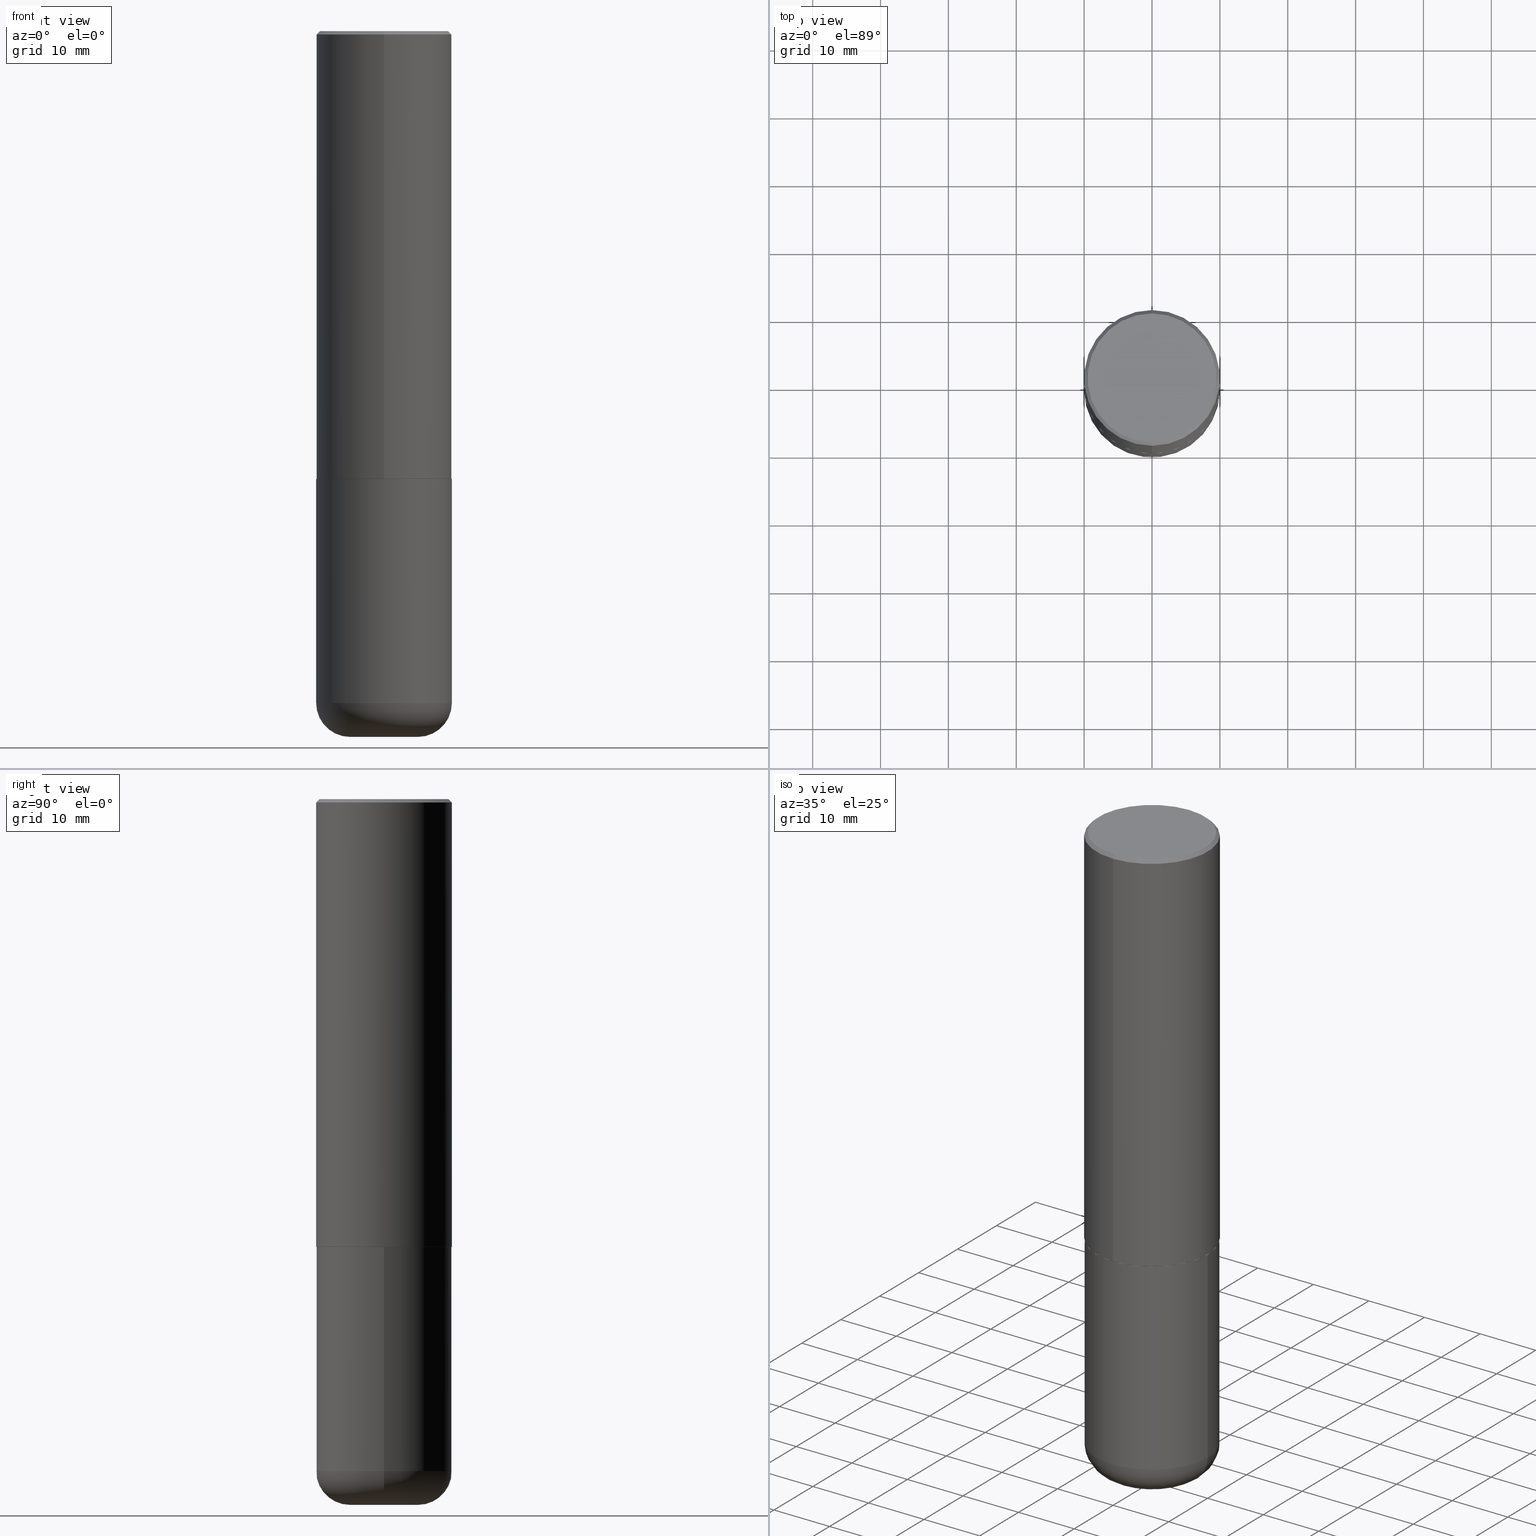
[diagram: canonical four-view strip — front | top / right | iso, engineering-drawing reading convention]
A machine part, canonical four-view strip (front | top / right | iso — engineering-drawing reading convention). The complete STEP part file that produces these views, byte-faithful:
ISO-10303-21;
HEADER;
FILE_DESCRIPTION (( 'STEP AP203' ),
    '1' );
FILE_NAME ('46470.STEP',
    '2024-03-04T22:43:15',
    ( '' ),
    ( '' ),
    'SwSTEP 2.0',
    'SolidWorks 2023',
    '' );
FILE_SCHEMA (( 'CONFIG_CONTROL_DESIGN' ));
ENDSEC;

DATA;
#1 = AXIS2_PLACEMENT_3D ( 'NONE', #292, #386, #190 ) ;
#2 = CLOSED_SHELL ( 'NONE', ( #331, #314, #208, #178, #112, #251 ) ) ;
#3 = DIRECTION ( 'NONE',  ( 1.000000000000000000, -6.982962677686265922E-15, 4.876176775795935793E-29 ) ) ;
#4 = ORIENTED_EDGE ( 'NONE', *, *, #103, .T. ) ;
#5 = ORIENTED_EDGE ( 'NONE', *, *, #417, .T. ) ;
#6 = PLANE ( 'NONE',  #26 ) ;
#7 = PERSON_AND_ORGANIZATION_ROLE ( 'design_supplier' ) ;
#8 = EDGE_CURVE ( 'NONE', #402, #298, #96, .T. ) ;
#9 = CIRCLE ( 'NONE', #352, 0.1968999999999996586 ) ;
#10 = ORIENTED_EDGE ( 'NONE', *, *, #167, .T. ) ;
#11 = APPROVAL ( #88, 'UNSPECIFIED' ) ;
#12 = DIRECTION ( 'NONE',  ( -2.446421346102411128E-29, 3.490117247466403305E-15, 1.000000000000000000 ) ) ;
#13 = PERSON_AND_ORGANIZATION ( #37, #97 ) ;
#14 = ORIENTED_EDGE ( 'NONE', *, *, #65, .T. ) ;
#15 =( NAMED_UNIT ( * ) PLANE_ANGLE_UNIT ( ) SI_UNIT ( $, .RADIAN. ) );
#16 = VECTOR ( 'NONE', #180, 39.37007874015748143 ) ;
#17 = CC_DESIGN_APPROVAL ( #11, ( #393 ) ) ;
#18 = DIRECTION ( 'NONE',  ( -2.446421346102411128E-29, 3.490117247466403305E-15, 1.000000000000000000 ) ) ;
#19 = DIRECTION ( 'NONE',  ( 6.982962677686265922E-15, 1.000000000000000000, -3.491137977679280212E-15 ) ) ;
#20 = VERTEX_POINT ( 'NONE', #248 ) ;
#21 = CARTESIAN_POINT ( 'NONE',  ( 9.531459218987190195E-29, -1.360839766627504578E-14, -3.897600000000000620 ) ) ;
#22 = FACE_OUTER_BOUND ( 'NONE', #377, .T. ) ;
#23 = MECHANICAL_CONTEXT ( 'NONE', #229, 'mechanical' ) ;
#24 = EDGE_CURVE ( 'NONE', #306, #131, #197, .T. ) ;
#25 = CARTESIAN_POINT ( 'NONE',  ( 2.749192406205082822E-15, 0.3936999999999998834, -0.02000000000000146105 ) ) ;
#26 = AXIS2_PLACEMENT_3D ( 'NONE', #114, #317, #150 ) ;
#27 = CIRCLE ( 'NONE', #43, 0.1968000000000000582 ) ;
#28 = PERSON_AND_ORGANIZATION_ROLE ( 'design_owner' ) ;
#29 = EDGE_LOOP ( 'NONE', ( #265, #234, #221, #309 ) ) ;
#30 = DIRECTION ( 'NONE',  ( -4.937700262165728178E-15, -0.7071067811867141062, 0.7071067811863809283 ) ) ;
#31 = EDGE_CURVE ( 'NONE', #306, #318, #336, .T. ) ;
#32 = ORIENTED_EDGE ( 'NONE', *, *, #263, .F. ) ;
#33 = DIRECTION ( 'NONE',  ( 2.438088387897960049E-29, -3.491481338843145188E-15, -1.000000000000000000 ) ) ;
#34 = EDGE_CURVE ( 'NONE', #20, #76, #41, .T. ) ;
#35 = AXIS2_PLACEMENT_3D ( 'NONE', #201, #132, #395 ) ;
#36 = AXIS2_PLACEMENT_3D ( 'NONE', #157, #379, #321 ) ;
#37 = PERSON ( 'UNSPECIFIED', 'UNSPECIFIED', 'UNSPECIFIED', ('UNSPECIFIED'), ('UNSPECIFIED'), ('UNSPECIFIED') ) ;
#38 = CARTESIAN_POINT ( 'NONE',  ( 0.000000000000000000, 0.000000000000000000, 0.000000000000000000 ) ) ;
#39 = EDGE_CURVE ( 'NONE', #351, #402, #281, .T. ) ;
#40 = PLANE ( 'NONE',  #414 ) ;
#41 = CIRCLE ( 'NONE', #343, 0.3936999999999999389 ) ;
#42 = FACE_OUTER_BOUND ( 'NONE', #200, .T. ) ;
#43 = AXIS2_PLACEMENT_3D ( 'NONE', #205, #210, #342 ) ;
#44 = CC_DESIGN_PERSON_AND_ORGANIZATION_ASSIGNMENT ( #279, #243, ( #372 ) ) ;
#45 = DIRECTION ( 'NONE',  ( -2.446421346102410847E-29, 3.490117247466403305E-15, 1.000000000000000000 ) ) ;
#46 = VERTEX_POINT ( 'NONE', #193 ) ;
#47 = CARTESIAN_POINT ( 'NONE',  ( 9.531459218987190195E-29, -1.360839766627504578E-14, -3.897600000000000620 ) ) ;
#48 = COORDINATED_UNIVERSAL_TIME_OFFSET ( 5, 0, .BEHIND. ) ;
#49 = FACE_OUTER_BOUND ( 'NONE', #149, .T. ) ;
#50 = ORIENTED_EDGE ( 'NONE', *, *, #373, .T. ) ;
#51 = CIRCLE ( 'NONE', #247, 0.3736999999999997546 ) ;
#52 = FACE_OUTER_BOUND ( 'NONE', #172, .T. ) ;
#53 = DIRECTION ( 'NONE',  ( -2.446421346102411128E-29, 3.490117247466403305E-15, 1.000000000000000000 ) ) ;
#54 = ORIENTED_EDGE ( 'NONE', *, *, #24, .F. ) ;
#55 = DIRECTION ( 'NONE',  ( -6.982962677686265133E-15, -1.000000000000000000, 3.490117247466403699E-15 ) ) ;
#56 =( CONVERSION_BASED_UNIT ( 'INCH', #192 ) LENGTH_UNIT ( ) NAMED_UNIT ( #301 ) );
#57 = EDGE_CURVE ( 'NONE', #131, #351, #9, .T. ) ;
#58 = APPROVAL_ROLE ( '' ) ;
#59 = AXIS2_PLACEMENT_3D ( 'NONE', #38, #300, #3 ) ;
#60 =( NAMED_UNIT ( * ) SI_UNIT ( $, .STERADIAN. ) SOLID_ANGLE_UNIT ( ) );
#61 = CARTESIAN_POINT ( 'NONE',  ( -2.749192406205083217E-15, -0.3937000000000001054, 1.374059160327523452E-15 ) ) ;
#62 = EDGE_CURVE ( 'NONE', #298, #402, #164, .T. ) ;
#63 = APPLICATION_PROTOCOL_DEFINITION ( 'international standard', 'config_control_design', 1994, #229 ) ;
#64 = DIRECTION ( 'NONE',  ( 1.000000000000000000, -6.982962677686264344E-15, 4.883557194083112340E-29 ) ) ;
#65 = EDGE_CURVE ( 'NONE', #46, #20, #299, .T. ) ;
#66 = ORIENTED_EDGE ( 'NONE', *, *, #159, .T. ) ;
#67 = CONICAL_SURFACE ( 'NONE', #202, 0.3926999999999999935, 0.7853981633976873100 ) ;
#68 = DIRECTION ( 'NONE',  ( -2.446421346102411128E-29, 3.490117247466403305E-15, 1.000000000000000000 ) ) ;
#69 = CARTESIAN_POINT ( 'NONE',  ( -2.742209443527332910E-15, -0.3927000000000090973, -2.598399999999998489 ) ) ;
#70 = EDGE_CURVE ( 'NONE', #228, #387, #51, .T. ) ;
#71 = CONICAL_SURFACE ( 'NONE', #239, 0.3936999999999999389, 0.7853981633974473908 ) ;
#72 = CYLINDRICAL_SURFACE ( 'NONE', #384, 0.3937000000000001054 ) ;
#73 = ORIENTED_EDGE ( 'NONE', *, *, #277, .F. ) ;
#74 = ORIENTED_EDGE ( 'NONE', *, *, #256, .T. ) ;
#75 = CARTESIAN_POINT ( 'NONE',  ( 0.000000000000000000, 0.000000000000000000, 0.000000000000000000 ) ) ;
#76 = VERTEX_POINT ( 'NONE', #367 ) ;
#77 = AXIS2_PLACEMENT_3D ( 'NONE', #357, #152, #389 ) ;
#78 = LOCAL_TIME ( 17, 43, 15.00000000000000000, #211 ) ;
#79 = CYLINDRICAL_SURFACE ( 'NONE', #176, 0.3937000000000001054 ) ;
#80 = ADVANCED_FACE ( 'NONE', ( #222 ), #71, .T. ) ;
#81 = DIRECTION ( 'NONE',  ( -2.446421346102411128E-29, 3.490117247466403305E-15, 1.000000000000000000 ) ) ;
#82 = ORIENTED_EDGE ( 'NONE', *, *, #70, .F. ) ;
#83 = DIRECTION ( 'NONE',  ( 1.000000000000000000, -6.982962677686265922E-15, 4.876176775795935793E-29 ) ) ;
#84 = VECTOR ( 'NONE', #209, 39.37007874015748143 ) ;
#85 = CARTESIAN_POINT ( 'NONE',  ( 0.000000000000000000, 0.000000000000000000, 0.000000000000000000 ) ) ;
#86 = APPROVAL_STATUS ( 'not_yet_approved' ) ;
#87 = COORDINATED_UNIVERSAL_TIME_OFFSET ( 5, 0, .BEHIND. ) ;
#88 = APPROVAL_STATUS ( 'not_yet_approved' ) ;
#89 = APPROVAL_ROLE ( '' ) ;
#90 = ORIENTED_EDGE ( 'NONE', *, *, #394, .T. ) ;
#91 = ORIENTED_EDGE ( 'NONE', *, *, #62, .F. ) ;
#92 = PERSON_AND_ORGANIZATION ( #37, #97 ) ;
#93 = LINE ( 'NONE', #69, #106 ) ;
#94 = APPROVAL ( #284, 'UNSPECIFIED' ) ;
#95 = ORIENTED_EDGE ( 'NONE', *, *, #124, .F. ) ;
#96 = CIRCLE ( 'NONE', #104, 0.3937000000000000499 ) ;
#97 = ORGANIZATION ( 'UNSPECIFIED', 'UNSPECIFIED', '' ) ;
#98 = CARTESIAN_POINT ( 'NONE',  ( -3.642432124526785739E-45, 5.196371917204674940E-31, 1.488881762060257599E-16 ) ) ;
#99 = DIRECTION ( 'NONE',  ( -2.446421346102411128E-29, 3.490117247466403305E-15, 1.000000000000000000 ) ) ;
#100 = ORIENTED_EDGE ( 'NONE', *, *, #394, .F. ) ;
#101 = CARTESIAN_POINT ( 'NONE',  ( -3.642432124526785739E-45, 5.196371917204674940E-31, 1.488881762060257599E-16 ) ) ;
#102 = FACE_OUTER_BOUND ( 'NONE', #385, .T. ) ;
#103 = EDGE_CURVE ( 'NONE', #183, #273, #219, .T. ) ;
#104 = AXIS2_PLACEMENT_3D ( 'NONE', #383, #218, #254 ) ;
#105 = LOCAL_TIME ( 17, 43, 15.00000000000000000, #87 ) ;
#106 = VECTOR ( 'NONE', #30, 39.37007874015748143 ) ;
#107 = DIRECTION ( 'NONE',  ( -6.982962677686265922E-15, -1.000000000000000000, 3.490117247466403305E-15 ) ) ;
#108 = ORIENTED_EDGE ( 'NONE', *, *, #256, .F. ) ;
#109 = ADVANCED_BREP_SHAPE_REPRESENTATION ( '46470', ( #168, #162, #36 ), #198 ) ;
#110 = EDGE_LOOP ( 'NONE', ( #143, #170 ) ) ;
#111 = AXIS2_PLACEMENT_3D ( 'NONE', #359, #160, #195 ) ;
#112 = ADVANCED_FACE ( 'NONE', ( #42 ), #115, .T. ) ;
#113 = ORIENTED_EDGE ( 'NONE', *, *, #417, .F. ) ;
#114 = CARTESIAN_POINT ( 'NONE',  ( 6.354306145991459756E-29, -9.072265110850031044E-15, -2.598400000000000265 ) ) ;
#115 = TOROIDAL_SURFACE ( 'NONE', #283, 0.1968000000000000305, 0.1968999999999996031 ) ;
#116 = VECTOR ( 'NONE', #154, 39.37007874015748143 ) ;
#117 = SECURITY_CLASSIFICATION_LEVEL ( 'unclassified' ) ;
#118 = EDGE_LOOP ( 'NONE', ( #95, #108, #297, #313 ) ) ;
#119 = DIRECTION ( 'NONE',  ( -2.445468806185136597E-29, 3.491481338843145583E-15, 1.000000000000000000 ) ) ;
#120 = CC_DESIGN_PERSON_AND_ORGANIZATION_ASSIGNMENT ( #13, #404, ( #393 ) ) ;
#121 = ORIENTED_EDGE ( 'NONE', *, *, #167, .F. ) ;
#122 = CARTESIAN_POINT ( 'NONE',  ( -0.1968000000000000305, -1.221004956229916800E-14, -3.897600000000000620 ) ) ;
#123 = CARTESIAN_POINT ( 'NONE',  ( 0.3936999999999998279, -1.635759007248013057E-14, -3.897600000000000620 ) ) ;
#124 = EDGE_CURVE ( 'NONE', #228, #76, #264, .T. ) ;
#125 = AXIS2_PLACEMENT_3D ( 'NONE', #311, #214, #271 ) ;
#126 = AXIS2_PLACEMENT_3D ( 'NONE', #356, #289, #64 ) ;
#127 = DATE_AND_TIME ( #418, #156 ) ;
#128 = ORIENTED_EDGE ( 'NONE', *, *, #226, .T. ) ;
#129 = APPROVAL_DATE_TIME ( #127, #94 ) ;
#130 = CARTESIAN_POINT ( 'NONE',  ( 1.795080631781638397E-28, -2.928439843866505824E-15, -4.094500000000000028 ) ) ;
#131 = VERTEX_POINT ( 'NONE', #242 ) ;
#132 = DIRECTION ( 'NONE',  ( -2.446421346102411128E-29, 3.490117247466403305E-15, 1.000000000000000000 ) ) ;
#133 = CC_DESIGN_DATE_AND_TIME_ASSIGNMENT ( #371, #374, ( #294 ) ) ;
#134 = AXIS2_PLACEMENT_3D ( 'NONE', #21, #259, #191 ) ;
#135 = DIRECTION ( 'NONE',  ( -2.446421346102411408E-29, 3.490117247466403305E-15, 1.000000000000000000 ) ) ;
#136 = ADVANCED_FACE ( 'NONE', ( #49 ), #79, .T. ) ;
#137 = EDGE_LOOP ( 'NONE', ( #121, #50, #400, #236 ) ) ;
#138 = CARTESIAN_POINT ( 'NONE',  ( 6.356781225712504765E-29, -9.068720655816703209E-15, -2.598400000000000265 ) ) ;
#139 = LINE ( 'NONE', #305, #179 ) ;
#140 = CALENDAR_DATE ( 2024, 4, 3 ) ;
#141 = CARTESIAN_POINT ( 'NONE',  ( 0.000000000000000000, 0.000000000000000000, 0.000000000000000000 ) ) ;
#142 = DIRECTION ( 'NONE',  ( -6.982962677686265133E-15, -1.000000000000000000, 4.173946514383900962E-15 ) ) ;
#143 = ORIENTED_EDGE ( 'NONE', *, *, #62, .T. ) ;
#144 = PERSON_AND_ORGANIZATION ( #37, #97 ) ;
#145 = ORIENTED_EDGE ( 'NONE', *, *, #226, .F. ) ;
#146 = COORDINATED_UNIVERSAL_TIME_OFFSET ( 5, 0, .BEHIND. ) ;
#147 = AXIS2_PLACEMENT_3D ( 'NONE', #98, #361, #253 ) ;
#148 = ORIENTED_EDGE ( 'NONE', *, *, #39, .F. ) ;
#149 = EDGE_LOOP ( 'NONE', ( #66, #14, #278, #32 ) ) ;
#150 = DIRECTION ( 'NONE',  ( -1.000000000000000000, 6.982962677686265922E-15, -4.876176775795935793E-29 ) ) ;
#151 = ORIENTED_EDGE ( 'NONE', *, *, #327, .F. ) ;
#152 = DIRECTION ( 'NONE',  ( -2.446421346102411128E-29, 3.490117247466403305E-15, 1.000000000000000000 ) ) ;
#153 = PERSON_AND_ORGANIZATION ( #37, #97 ) ;
#154 = DIRECTION ( 'NONE',  ( 4.937700262164543309E-15, 0.7071067811865444641, -0.7071067811865506814 ) ) ;
#155 = AXIS2_PLACEMENT_3D ( 'NONE', #138, #45, #173 ) ;
#156 = LOCAL_TIME ( 17, 43, 15.00000000000000000, #146 ) ;
#157 = CARTESIAN_POINT ( 'NONE',  ( 0.000000000000000000, 0.000000000000000000, 0.000000000000000000 ) ) ;
#158 = ORIENTED_EDGE ( 'NONE', *, *, #57, .T. ) ;
#159 = EDGE_CURVE ( 'NONE', #307, #46, #413, .T. ) ;
#160 = DIRECTION ( 'NONE',  ( -2.445468806185136597E-29, 3.491481338843145583E-15, 1.000000000000000000 ) ) ;
#161 = CARTESIAN_POINT ( 'NONE',  ( 2.793854037008778575E-15, 0.3926999999999909452, -2.598400000000002041 ) ) ;
#162 = MANIFOLD_SOLID_BREP ( 'Body-Move/Copy2[2]', #293 ) ;
#163 = EDGE_LOOP ( 'NONE', ( #82, #238, #262, #151 ) ) ;
#164 = CIRCLE ( 'NONE', #169, 0.3937000000000000499 ) ;
#165 = DIRECTION ( 'NONE',  ( -2.445468806185136597E-29, 3.491481338843145583E-15, 1.000000000000000000 ) ) ;
#166 = CARTESIAN_POINT ( 'NONE',  ( 2.609533152651355831E-15, 0.3736999999999997546, -1.229812727275181211E-15 ) ) ;
#167 = EDGE_CURVE ( 'NONE', #273, #46, #231, .T. ) ;
#168 = MANIFOLD_SOLID_BREP ( 'Body-Move/Copy2[1]', #2 ) ;
#169 = AXIS2_PLACEMENT_3D ( 'NONE', #416, #165, #392 ) ;
#170 = ORIENTED_EDGE ( 'NONE', *, *, #8, .T. ) ;
#171 = FACE_OUTER_BOUND ( 'NONE', #225, .T. ) ;
#172 = EDGE_LOOP ( 'NONE', ( #54, #100 ) ) ;
#173 = DIRECTION ( 'NONE',  ( -6.982962677686265922E-15, -1.000000000000000000, 3.490117247466403305E-15 ) ) ;
#174 = DATE_AND_TIME ( #215, #78 ) ;
#175 = PRODUCT ( '46470', '46470', '', ( #23 ) ) ;
#176 = AXIS2_PLACEMENT_3D ( 'NONE', #85, #12, #55 ) ;
#177 = DESIGN_CONTEXT ( 'detailed design', #270, 'design' ) ;
#178 = ADVANCED_FACE ( 'NONE', ( #207 ), #341, .T. ) ;
#179 = VECTOR ( 'NONE', #274, 39.37007874015748143 ) ;
#180 = DIRECTION ( 'NONE',  ( -4.851104656540959542E-15, -0.7071067811865493491, -0.7071067811865457964 ) ) ;
#181 = ADVANCED_FACE ( 'NONE', ( #408 ), #204, .F. ) ;
#182 = CC_DESIGN_PERSON_AND_ORGANIZATION_ASSIGNMENT ( #144, #7, ( #393 ) ) ;
#183 = VERTEX_POINT ( 'NONE', #401 ) ;
#184 = UNCERTAINTY_MEASURE_WITH_UNIT (LENGTH_MEASURE( 1.000000000000000082E-05 ), #56, 'distance_accuracy_value', 'NONE');
#185 = CARTESIAN_POINT ( 'NONE',  ( 2.790301323329976493E-15, 0.3926999999999909452, -2.598400000000002041 ) ) ;
#186 = CALENDAR_DATE ( 2024, 4, 3 ) ;
#187 = DIRECTION ( 'NONE',  ( -6.982962677686265922E-15, -1.000000000000000000, 3.491137977679280212E-15 ) ) ;
#188 = CIRCLE ( 'NONE', #1, 0.3937000000000000499 ) ;
#189 = ADVANCED_FACE ( 'NONE', ( #171 ), #67, .T. ) ;
#190 = DIRECTION ( 'NONE',  ( 1.000000000000000000, -6.982962677686267499E-15, 0.000000000000000000 ) ) ;
#191 = DIRECTION ( 'NONE',  ( 1.000000000000000000, -6.982962677686267499E-15, 0.000000000000000000 ) ) ;
#192 = LENGTH_MEASURE_WITH_UNIT ( LENGTH_MEASURE( 0.02539999999999999897 ), #348 );
#193 = CARTESIAN_POINT ( 'NONE',  ( 2.797406750687547919E-15, 0.3936999999999912792, -2.597400000000002152 ) ) ;
#194 = CIRCLE ( 'NONE', #345, 0.3926999999999999935 ) ;
#195 = DIRECTION ( 'NONE',  ( 1.000000000000000000, -6.982962677686269866E-15, 0.000000000000000000 ) ) ;
#196 = DIRECTION ( 'NONE',  ( -6.982962677686265922E-15, -1.000000000000000000, 3.491137977679280212E-15 ) ) ;
#197 = CIRCLE ( 'NONE', #111, 0.1968000000000000582 ) ;
#198 =( GEOMETRIC_REPRESENTATION_CONTEXT ( 3 ) GLOBAL_UNCERTAINTY_ASSIGNED_CONTEXT ( ( #184 ) ) GLOBAL_UNIT_ASSIGNED_CONTEXT ( ( #56, #15, #60 ) ) REPRESENTATION_CONTEXT ( 'NONE', 'WORKASPACE' ) );
#199 = ORIENTED_EDGE ( 'NONE', *, *, #31, .T. ) ;
#200 = EDGE_LOOP ( 'NONE', ( #399, #90, #199, #145 ) ) ;
#201 = CARTESIAN_POINT ( 'NONE',  ( 6.356781225712504765E-29, -9.068720655816703209E-15, -2.598400000000000265 ) ) ;
#202 = AXIS2_PLACEMENT_3D ( 'NONE', #347, #53, #275 ) ;
#203 = VECTOR ( 'NONE', #380, 39.37007874015748143 ) ;
#204 = PLANE ( 'NONE',  #155 ) ;
#205 = CARTESIAN_POINT ( 'NONE',  ( 1.001297202692504102E-28, -1.429587034189325834E-14, -4.094500000000000028 ) ) ;
#206 = ORIENTED_EDGE ( 'NONE', *, *, #8, .F. ) ;
#207 = FACE_OUTER_BOUND ( 'NONE', #316, .T. ) ;
#208 = ADVANCED_FACE ( 'NONE', ( #405 ), #6, .F. ) ;
#209 = DIRECTION ( 'NONE',  ( 5.024295867789263036E-15, 0.7071067811867189912, 0.7071067811863760433 ) ) ;
#210 = DIRECTION ( 'NONE',  ( -2.445468806185136597E-29, 3.491481338843145583E-15, 1.000000000000000000 ) ) ;
#211 = COORDINATED_UNIVERSAL_TIME_OFFSET ( 5, 0, .BEHIND. ) ;
#212 = ORIENTED_EDGE ( 'NONE', *, *, #39, .T. ) ;
#213 = CC_DESIGN_PERSON_AND_ORGANIZATION_ASSIGNMENT ( #241, #237, ( #294 ) ) ;
#214 = DIRECTION ( 'NONE',  ( -2.446421346102411128E-29, 3.490117247466403305E-15, 1.000000000000000000 ) ) ;
#215 = CALENDAR_DATE ( 2024, 4, 3 ) ;
#216 = CALENDAR_DATE ( 2024, 4, 3 ) ;
#217 = LOCAL_TIME ( 17, 43, 15.00000000000000000, #315 ) ;
#218 = DIRECTION ( 'NONE',  ( -2.445468806185136597E-29, 3.491481338843145583E-15, 1.000000000000000000 ) ) ;
#219 = CIRCLE ( 'NONE', #35, 0.3926999999999999935 ) ;
#220 = AXIS2_PLACEMENT_3D ( 'NONE', #130, #33, #291 ) ;
#221 = ORIENTED_EDGE ( 'NONE', *, *, #263, .T. ) ;
#222 = FACE_OUTER_BOUND ( 'NONE', #163, .T. ) ;
#223 = DIRECTION ( 'NONE',  ( -2.446421346102411128E-29, 3.490117247466403305E-15, 1.000000000000000000 ) ) ;
#224 = DIRECTION ( 'NONE',  ( 2.446421346102411128E-29, -3.490117247466403305E-15, -1.000000000000000000 ) ) ;
#225 = EDGE_LOOP ( 'NONE', ( #4, #10, #261, #368 ) ) ;
#226 = EDGE_CURVE ( 'NONE', #351, #318, #325, .T. ) ;
#227 = EDGE_CURVE ( 'NONE', #46, #307, #255, .T. ) ;
#228 = VERTEX_POINT ( 'NONE', #409 ) ;
#229 = APPLICATION_CONTEXT ( 'configuration controlled 3d designs of mechanical parts and assemblies' ) ;
#230 = EDGE_CURVE ( 'NONE', #76, #20, #358, .T. ) ;
#231 = LINE ( 'NONE', #185, #84 ) ;
#232 = CARTESIAN_POINT ( 'NONE',  ( 6.356781225712504765E-29, -9.068720655816703209E-15, -2.598400000000000265 ) ) ;
#233 = ADVANCED_FACE ( 'NONE', ( #320 ), #398, .T. ) ;
#234 = ORIENTED_EDGE ( 'NONE', *, *, #227, .T. ) ;
#235 = CARTESIAN_POINT ( 'NONE',  ( -2.700978061722650858E-15, -0.3937000000000000499, -0.01999999999999870978 ) ) ;
#236 = ORIENTED_EDGE ( 'NONE', *, *, #227, .F. ) ;
#237 = PERSON_AND_ORGANIZATION_ROLE ( 'classification_officer' ) ;
#238 = ORIENTED_EDGE ( 'NONE', *, *, #124, .T. ) ;
#239 = AXIS2_PLACEMENT_3D ( 'NONE', #304, #224, #362 ) ;
#240 = CONICAL_SURFACE ( 'NONE', #407, 0.3926999999999999935, 0.7853981633976873100 ) ;
#241 = PERSON_AND_ORGANIZATION ( #37, #97 ) ;
#242 = CARTESIAN_POINT ( 'NONE',  ( -0.1968000000000000582, -1.185425657675245696E-14, -4.094500000000000028 ) ) ;
#243 = PERSON_AND_ORGANIZATION_ROLE ( 'creator' ) ;
#244 = PERSON_AND_ORGANIZATION ( #37, #97 ) ;
#245 = DIRECTION ( 'NONE',  ( -1.000000000000000000, 7.105427357601005014E-15, 0.000000000000000000 ) ) ;
#246 = ORIENTED_EDGE ( 'NONE', *, *, #277, .T. ) ;
#247 = AXIS2_PLACEMENT_3D ( 'NONE', #101, #295, #107 ) ;
#248 = CARTESIAN_POINT ( 'NONE',  ( 2.749192406205082822E-15, 0.3936999999999998834, -0.02000000000000146105 ) ) ;
#249 = DIRECTION ( 'NONE',  ( 1.000000000000000000, -6.982962677686267499E-15, 0.000000000000000000 ) ) ;
#250 = PLANE ( 'NONE',  #220 ) ;
#251 = ADVANCED_FACE ( 'NONE', ( #52 ), #250, .T. ) ;
#252 = ORIENTED_EDGE ( 'NONE', *, *, #373, .F. ) ;
#253 = DIRECTION ( 'NONE',  ( -6.982962677686265922E-15, -1.000000000000000000, 3.490117247466403305E-15 ) ) ;
#254 = DIRECTION ( 'NONE',  ( 1.000000000000000000, -6.982962677686267499E-15, 0.000000000000000000 ) ) ;
#255 = CIRCLE ( 'NONE', #77, 0.3937000000000002720 ) ;
#256 = EDGE_CURVE ( 'NONE', #387, #228, #344, .T. ) ;
#257 = LINE ( 'NONE', #61, #203 ) ;
#258 = CARTESIAN_POINT ( 'NONE',  ( -0.3936999999999998279, -1.081099091558753178E-14, -3.897600000000000620 ) ) ;
#259 = DIRECTION ( 'NONE',  ( -2.445468806185136597E-29, 3.491481338843145583E-15, 1.000000000000000000 ) ) ;
#260 = APPROVAL_PERSON_ORGANIZATION ( #244, #333, #89 ) ;
#261 = ORIENTED_EDGE ( 'NONE', *, *, #159, .F. ) ;
#262 = ORIENTED_EDGE ( 'NONE', *, *, #230, .T. ) ;
#263 = EDGE_CURVE ( 'NONE', #307, #76, #257, .T. ) ;
#264 = LINE ( 'NONE', #235, #16 ) ;
#265 = ORIENTED_EDGE ( 'NONE', *, *, #65, .F. ) ;
#266 = DIRECTION ( 'NONE',  ( 1.000000000000000000, -6.982962677686264344E-15, 4.883557194083112340E-29 ) ) ;
#267 = DATE_AND_TIME ( #140, #217 ) ;
#268 = FACE_OUTER_BOUND ( 'NONE', #29, .T. ) ;
#269 = ORIENTED_EDGE ( 'NONE', *, *, #31, .F. ) ;
#270 = APPLICATION_CONTEXT ( 'configuration controlled 3d designs of mechanical parts and assemblies' ) ;
#271 = DIRECTION ( 'NONE',  ( -6.982962677686265922E-15, -1.000000000000000000, 4.163344669033672479E-15 ) ) ;
#272 = EDGE_CURVE ( 'NONE', #183, #307, #93, .T. ) ;
#273 = VERTEX_POINT ( 'NONE', #161 ) ;
#274 = DIRECTION ( 'NONE',  ( -2.445468806185136877E-29, 3.491481338843145188E-15, 1.000000000000000000 ) ) ;
#275 = DIRECTION ( 'NONE',  ( -6.982962677686265133E-15, -1.000000000000000000, 4.173946514383900962E-15 ) ) ;
#276 = APPROVAL_DATE_TIME ( #267, #11 ) ;
#277 = EDGE_CURVE ( 'NONE', #318, #351, #188, .T. ) ;
#278 = ORIENTED_EDGE ( 'NONE', *, *, #230, .F. ) ;
#279 = PERSON_AND_ORGANIZATION ( #37, #97 ) ;
#280 = ORIENTED_EDGE ( 'NONE', *, *, #103, .F. ) ;
#281 = LINE ( 'NONE', #355, #308 ) ;
#282 = CARTESIAN_POINT ( 'NONE',  ( 0.1968000000000000582, -1.567011739686191643E-14, -4.094500000000000028 ) ) ;
#283 = AXIS2_PLACEMENT_3D ( 'NONE', #47, #339, #266 ) ;
#284 = APPROVAL_STATUS ( 'not_yet_approved' ) ;
#285 = CARTESIAN_POINT ( 'NONE',  ( 4.892842692204843555E-31, -6.980234494932836242E-17, -0.02000000000000008715 ) ) ;
#286 = APPROVAL_PERSON_ORGANIZATION ( #153, #94, #415 ) ;
#287 = PRODUCT_RELATED_PRODUCT_CATEGORY ( 'detail', '', ( #175 ) ) ;
#288 = APPLICATION_PROTOCOL_DEFINITION ( 'international standard', 'config_control_design', 1994, #270 ) ;
#289 = DIRECTION ( 'NONE',  ( -2.445468806185136597E-29, 3.491481338843145583E-15, 1.000000000000000000 ) ) ;
#290 = DIRECTION ( 'NONE',  ( -6.982962677686266711E-15, -1.000000000000000000, 3.491481338843145583E-15 ) ) ;
#291 = DIRECTION ( 'NONE',  ( -1.000000000000000000, 6.982962677686265922E-15, -4.876176775795935793E-29 ) ) ;
#292 = CARTESIAN_POINT ( 'NONE',  ( 9.531459218987190195E-29, -1.360839766627504578E-14, -3.897600000000000620 ) ) ;
#293 = CLOSED_SHELL ( 'NONE', ( #189, #136, #80, #233, #346, #391, #181, #382 ) ) ;
#294 = SECURITY_CLASSIFICATION ( '', '', #117 ) ;
#295 = DIRECTION ( 'NONE',  ( -2.446421346102411128E-29, 3.490117247466403305E-15, 1.000000000000000000 ) ) ;
#296 = CARTESIAN_POINT ( 'NONE',  ( 2.797406750687514786E-15, 0.3937000000000001054, -1.374059160327523452E-15 ) ) ;
#297 = ORIENTED_EDGE ( 'NONE', *, *, #327, .T. ) ;
#298 = VERTEX_POINT ( 'NONE', #322 ) ;
#299 = LINE ( 'NONE', #296, #406 ) ;
#300 = DIRECTION ( 'NONE',  ( -2.445468806185136597E-29, 3.491481338843145583E-15, 1.000000000000000000 ) ) ;
#301 = DIMENSIONAL_EXPONENTS ( 1.000000000000000000, 0.000000000000000000, 0.000000000000000000, 0.000000000000000000, 0.000000000000000000, 0.000000000000000000, 0.000000000000000000 ) ;
#302 = AXIS2_PLACEMENT_3D ( 'NONE', #141, #119, #83 ) ;
#303 = TOROIDAL_SURFACE ( 'NONE', #126, 0.1968000000000000305, 0.1968999999999996031 ) ;
#304 = CARTESIAN_POINT ( 'NONE',  ( 4.892842692204843555E-31, -6.980234494932836242E-17, -0.02000000000000008715 ) ) ;
#305 = CARTESIAN_POINT ( 'NONE',  ( 0.3937000000000000499, -2.749192406205083217E-15, 1.919750796630860172E-29 ) ) ;
#306 = VERTEX_POINT ( 'NONE', #282 ) ;
#307 = VERTEX_POINT ( 'NONE', #381 ) ;
#308 = VECTOR ( 'NONE', #410, 39.37007874015748143 ) ;
#309 = ORIENTED_EDGE ( 'NONE', *, *, #34, .F. ) ;
#310 = AXIS2_PLACEMENT_3D ( 'NONE', #354, #99, #187 ) ;
#311 = CARTESIAN_POINT ( 'NONE',  ( 6.354334804366404649E-29, -9.065230538569238132E-15, -2.597400000000000375 ) ) ;
#312 = CARTESIAN_POINT ( 'NONE',  ( -0.3937000000000000499, -8.542924637875024414E-15, -2.598400000000000265 ) ) ;
#313 = ORIENTED_EDGE ( 'NONE', *, *, #34, .T. ) ;
#314 = ADVANCED_FACE ( 'NONE', ( #22 ), #303, .T. ) ;
#315 = COORDINATED_UNIVERSAL_TIME_OFFSET ( 5, 0, .BEHIND. ) ;
#316 = EDGE_LOOP ( 'NONE', ( #148, #128, #5, #206 ) ) ;
#317 = DIRECTION ( 'NONE',  ( 2.438088387897960049E-29, -3.491481338843145188E-15, -1.000000000000000000 ) ) ;
#318 = VERTEX_POINT ( 'NONE', #123 ) ;
#319 = CC_DESIGN_SECURITY_CLASSIFICATION ( #294, ( #393 ) ) ;
#320 = FACE_OUTER_BOUND ( 'NONE', #118, .T. ) ;
#321 = DIRECTION ( 'NONE',  ( 1.000000000000000000, 0.000000000000000000, 0.000000000000000000 ) ) ;
#322 = CARTESIAN_POINT ( 'NONE',  ( 0.3937000000000000499, -1.182145751705511584E-14, -2.598400000000000265 ) ) ;
#323 = DIRECTION ( 'NONE',  ( 7.105427357601001859E-15, 1.000000000000000000, -3.491481338843145583E-15 ) ) ;
#324 = LINE ( 'NONE', #25, #116 ) ;
#325 = CIRCLE ( 'NONE', #134, 0.3937000000000000499 ) ;
#326 = CC_DESIGN_APPROVAL ( #333, ( #294 ) ) ;
#327 = EDGE_CURVE ( 'NONE', #387, #20, #324, .T. ) ;
#328 = DATE_TIME_ROLE ( 'creation_date' ) ;
#329 = FACE_OUTER_BOUND ( 'NONE', #411, .T. ) ;
#330 = DIRECTION ( 'NONE',  ( 2.446421346102411128E-29, -3.490117247466403305E-15, -1.000000000000000000 ) ) ;
#331 = ADVANCED_FACE ( 'NONE', ( #102 ), #366, .T. ) ;
#332 = ORIENTED_EDGE ( 'NONE', *, *, #70, .T. ) ;
#333 = APPROVAL ( #86, 'UNSPECIFIED' ) ;
#334 = CC_DESIGN_DATE_AND_TIME_ASSIGNMENT ( #350, #328, ( #372 ) ) ;
#335 = DIRECTION ( 'NONE',  ( 6.982962677686265922E-15, 1.000000000000000000, -3.490117247466403305E-15 ) ) ;
#336 = CIRCLE ( 'NONE', #397, 0.1968999999999996586 ) ;
#337 = AXIS2_PLACEMENT_3D ( 'NONE', #364, #330, #19 ) ;
#338 = DIRECTION ( 'NONE',  ( -6.982962677686265133E-15, -1.000000000000000000, 3.490117247466403699E-15 ) ) ;
#339 = DIRECTION ( 'NONE',  ( -2.445468806185136597E-29, 3.491481338843145583E-15, 1.000000000000000000 ) ) ;
#340 = CARTESIAN_POINT ( 'NONE',  ( 2.679362779428219524E-15, 0.3736999999999997546, -1.155368639172168306E-15 ) ) ;
#341 = CYLINDRICAL_SURFACE ( 'NONE', #302, 0.3937000000000000499 ) ;
#342 = DIRECTION ( 'NONE',  ( 1.000000000000000000, -6.982962677686269866E-15, 0.000000000000000000 ) ) ;
#343 = AXIS2_PLACEMENT_3D ( 'NONE', #285, #68, #196 ) ;
#344 = CIRCLE ( 'NONE', #147, 0.3736999999999997546 ) ;
#345 = AXIS2_PLACEMENT_3D ( 'NONE', #388, #223, #363 ) ;
#346 = ADVANCED_FACE ( 'NONE', ( #268 ), #72, .T. ) ;
#347 = CARTESIAN_POINT ( 'NONE',  ( 6.356781225712504765E-29, -9.068720655816703209E-15, -2.598400000000000265 ) ) ;
#348 =( LENGTH_UNIT ( ) NAMED_UNIT ( * ) SI_UNIT ( $, .METRE. ) );
#349 = APPROVAL_DATE_TIME ( #174, #333 ) ;
#350 = DATE_AND_TIME ( #216, #105 ) ;
#351 = VERTEX_POINT ( 'NONE', #258 ) ;
#352 = AXIS2_PLACEMENT_3D ( 'NONE', #122, #323, #245 ) ;
#353 = APPROVAL_PERSON_ORGANIZATION ( #375, #11, #58 ) ;
#354 = CARTESIAN_POINT ( 'NONE',  ( 4.892842692204843555E-31, -6.980234494932836242E-17, -0.02000000000000008715 ) ) ;
#355 = CARTESIAN_POINT ( 'NONE',  ( -0.3937000000000000499, 2.797406750687514786E-15, -1.936584745033356735E-29 ) ) ;
#356 = CARTESIAN_POINT ( 'NONE',  ( 9.531459218987190195E-29, -1.360839766627504578E-14, -3.897600000000000620 ) ) ;
#357 = CARTESIAN_POINT ( 'NONE',  ( 6.354334804366404649E-29, -9.065230538569238132E-15, -2.597400000000000375 ) ) ;
#358 = CIRCLE ( 'NONE', #310, 0.3936999999999999389 ) ;
#359 = CARTESIAN_POINT ( 'NONE',  ( 1.001297202692504102E-28, -1.429587034189325834E-14, -4.094500000000000028 ) ) ;
#360 = CARTESIAN_POINT ( 'NONE',  ( 0.1968000000000000305, -1.498264472124370230E-14, -3.897600000000000620 ) ) ;
#361 = DIRECTION ( 'NONE',  ( -2.446421346102411128E-29, 3.490117247466403305E-15, 1.000000000000000000 ) ) ;
#362 = DIRECTION ( 'NONE',  ( 6.982962677686265922E-15, 1.000000000000000000, -3.491137977679280212E-15 ) ) ;
#363 = DIRECTION ( 'NONE',  ( -6.982962677686265133E-15, -1.000000000000000000, 4.173946514383900962E-15 ) ) ;
#364 = CARTESIAN_POINT ( 'NONE',  ( 4.892842692204843555E-31, -6.980234494932836242E-17, -0.02000000000000008715 ) ) ;
#365 = LOCAL_TIME ( 17, 43, 15.00000000000000000, #48 ) ;
#366 = CYLINDRICAL_SURFACE ( 'NONE', #59, 0.3937000000000000499 ) ;
#367 = CARTESIAN_POINT ( 'NONE',  ( -2.700978061722650858E-15, -0.3937000000000000499, -0.01999999999999870978 ) ) ;
#368 = ORIENTED_EDGE ( 'NONE', *, *, #272, .F. ) ;
#369 = FACE_OUTER_BOUND ( 'NONE', #137, .T. ) ;
#370 = CC_DESIGN_APPROVAL ( #94, ( #372 ) ) ;
#371 = DATE_AND_TIME ( #186, #365 ) ;
#372 = PRODUCT_DEFINITION ( 'UNKNOWN', '', #393, #177 ) ;
#373 = EDGE_CURVE ( 'NONE', #273, #183, #194, .T. ) ;
#374 = DATE_TIME_ROLE ( 'classification_date' ) ;
#375 = PERSON_AND_ORGANIZATION ( #37, #97 ) ;
#376 = SHAPE_DEFINITION_REPRESENTATION ( #390, #109 ) ;
#377 = EDGE_LOOP ( 'NONE', ( #378, #158, #73, #269 ) ) ;
#378 = ORIENTED_EDGE ( 'NONE', *, *, #24, .T. ) ;
#379 = DIRECTION ( 'NONE',  ( 0.000000000000000000, 0.000000000000000000, 1.000000000000000000 ) ) ;
#380 = DIRECTION ( 'NONE',  ( -2.446421346102411408E-29, 3.490117247466403305E-15, 1.000000000000000000 ) ) ;
#381 = CARTESIAN_POINT ( 'NONE',  ( -2.749192406205021291E-15, -0.3937000000000093758, -2.597399999999999043 ) ) ;
#382 = ADVANCED_FACE ( 'NONE', ( #329 ), #40, .F. ) ;
#383 = CARTESIAN_POINT ( 'NONE',  ( 6.354306145991459756E-29, -9.072265110850031044E-15, -2.598400000000000265 ) ) ;
#384 = AXIS2_PLACEMENT_3D ( 'NONE', #75, #18, #338 ) ;
#385 = EDGE_LOOP ( 'NONE', ( #246, #212, #91, #113 ) ) ;
#386 = DIRECTION ( 'NONE',  ( -2.445468806185136597E-29, 3.491481338843145583E-15, 1.000000000000000000 ) ) ;
#387 = VERTEX_POINT ( 'NONE', #340 ) ;
#388 = CARTESIAN_POINT ( 'NONE',  ( 6.356781225712504765E-29, -9.068720655816703209E-15, -2.598400000000000265 ) ) ;
#389 = DIRECTION ( 'NONE',  ( -6.982962677686265922E-15, -1.000000000000000000, 4.163344669033672479E-15 ) ) ;
#390 = PRODUCT_DEFINITION_SHAPE ( 'NONE', 'NONE',  #372 ) ;
#391 = ADVANCED_FACE ( 'NONE', ( #369 ), #240, .T. ) ;
#392 = DIRECTION ( 'NONE',  ( 1.000000000000000000, -6.982962677686267499E-15, 0.000000000000000000 ) ) ;
#393 = PRODUCT_DEFINITION_FORMATION_WITH_SPECIFIED_SOURCE ( 'ANY', '', #175, .NOT_KNOWN. ) ;
#394 = EDGE_CURVE ( 'NONE', #131, #306, #27, .T. ) ;
#395 = DIRECTION ( 'NONE',  ( -6.982962677686265133E-15, -1.000000000000000000, 4.173946514383900962E-15 ) ) ;
#396 = DIRECTION ( 'NONE',  ( 2.446421346102410847E-29, -3.490117247466403305E-15, -1.000000000000000000 ) ) ;
#397 = AXIS2_PLACEMENT_3D ( 'NONE', #360, #290, #249 ) ;
#398 = CONICAL_SURFACE ( 'NONE', #337, 0.3936999999999999389, 0.7853981633974473908 ) ;
#399 = ORIENTED_EDGE ( 'NONE', *, *, #57, .F. ) ;
#400 = ORIENTED_EDGE ( 'NONE', *, *, #272, .T. ) ;
#401 = CARTESIAN_POINT ( 'NONE',  ( -2.742209443527332910E-15, -0.3927000000000090973, -2.598399999999998489 ) ) ;
#402 = VERTEX_POINT ( 'NONE', #312 ) ;
#403 = CC_DESIGN_PERSON_AND_ORGANIZATION_ASSIGNMENT ( #92, #28, ( #175 ) ) ;
#404 = PERSON_AND_ORGANIZATION_ROLE ( 'creator' ) ;
#405 = FACE_OUTER_BOUND ( 'NONE', #110, .T. ) ;
#406 = VECTOR ( 'NONE', #135, 39.37007874015748143 ) ;
#407 = AXIS2_PLACEMENT_3D ( 'NONE', #232, #81, #142 ) ;
#408 = FACE_OUTER_BOUND ( 'NONE', #412, .T. ) ;
#409 = CARTESIAN_POINT ( 'NONE',  ( -2.632373081744935132E-15, -0.3736999999999997546, 1.453144991584219925E-15 ) ) ;
#410 = DIRECTION ( 'NONE',  ( -2.445468806185136877E-29, 3.491481338843145188E-15, 1.000000000000000000 ) ) ;
#411 = EDGE_LOOP ( 'NONE', ( #74, #332 ) ) ;
#412 = EDGE_LOOP ( 'NONE', ( #280, #252 ) ) ;
#413 = CIRCLE ( 'NONE', #125, 0.3937000000000002720 ) ;
#414 = AXIS2_PLACEMENT_3D ( 'NONE', #166, #396, #335 ) ;
#415 = APPROVAL_ROLE ( '' ) ;
#416 = CARTESIAN_POINT ( 'NONE',  ( 6.354306145991459756E-29, -9.072265110850031044E-15, -2.598400000000000265 ) ) ;
#417 = EDGE_CURVE ( 'NONE', #318, #298, #139, .T. ) ;
#418 = CALENDAR_DATE ( 2024, 4, 3 ) ;
ENDSEC;
END-ISO-10303-21;
